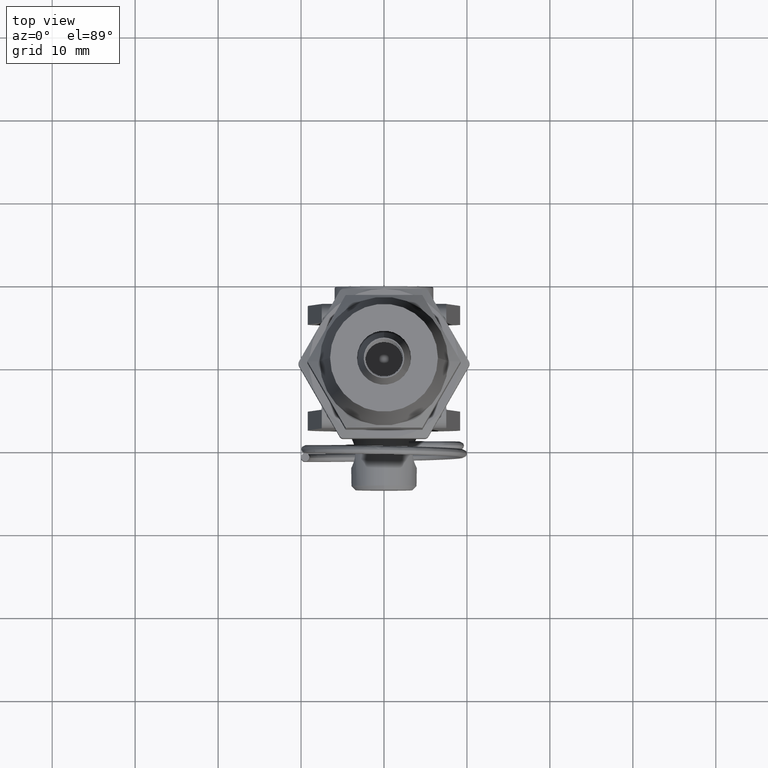
[diagram: clean part render]
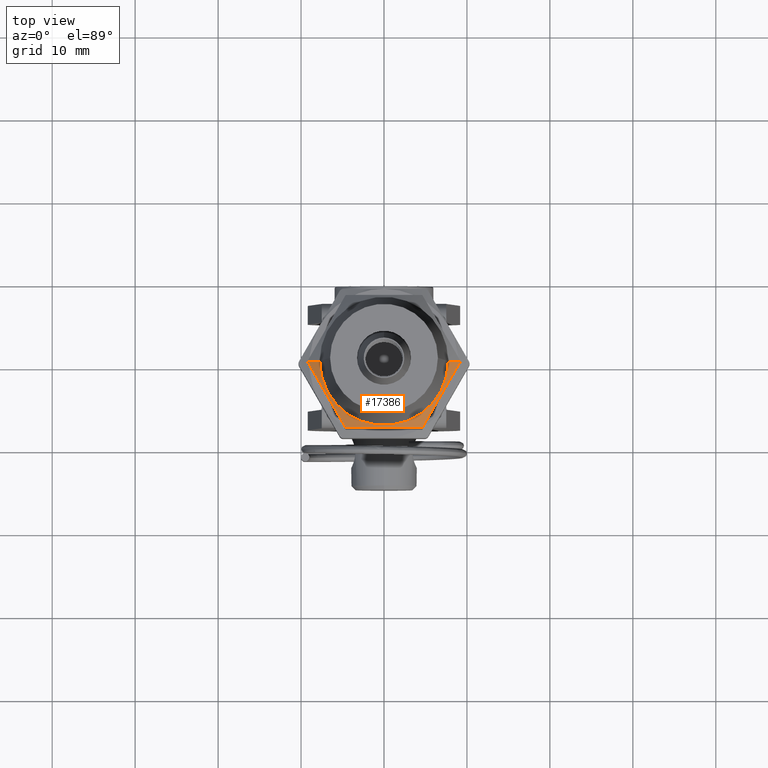
[diagram: same view with one face highlighted and labeled with its STEP entity id]
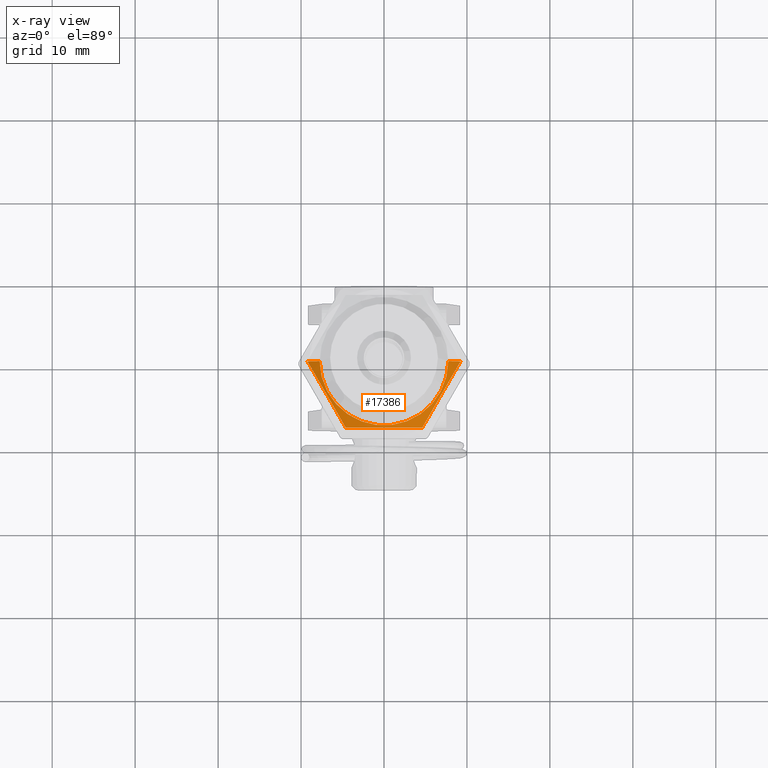
[diagram: x-ray of the same camera — body ghosted, the highlighted face saturated]
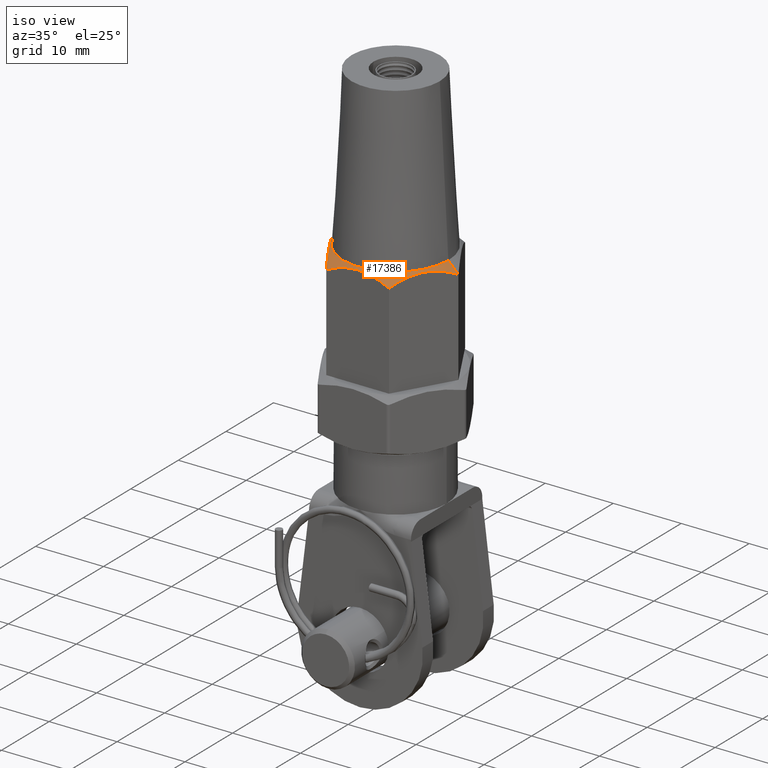
[diagram: same view with one face highlighted and labeled with its STEP entity id]
A machine part, top view. The second image highlights one B-rep face of the part: STEP entity #17386.
The next image is the same camera in x-ray: the body ghosted, the highlighted face saturated — about 0% of this face is hidden behind the body in this view.
A second angle (iso view) of the same face is appended — the face is thin or edge-on in the first view.
In plain terms, the highlighted conical surface has half-angle 45 deg.
Its self-contained STEP definition (entity closure, byte-faithful):
#480 = VERTEX_POINT ( 'NONE', #23951 ) ;
#825 = CARTESIAN_POINT ( 'NONE',  ( 7.138309739936278000, 3.636084850266585900, 15.24912493455081000 ) ) ;
#847 = VECTOR ( 'NONE', #10684, 999.9999999999998900 ) ;
#1408 = EDGE_CURVE ( 'NONE', #4898, #11591, #21672, .T. ) ;
#1543 = FACE_OUTER_BOUND ( 'NONE', #12428, .T. ) ;
#2098 = VERTEX_POINT ( 'NONE', #2561 ) ;
#2561 = CARTESIAN_POINT ( 'NONE',  ( 7.750000000000000000, 9.491012693391987800E-016, 15.49999999999999800 ) ) ;
#2592 = CARTESIAN_POINT ( 'NONE',  ( 7.342827493142404000, 3.281849710663745400, 15.21672055673864500 ) ) ;
#2645 = CARTESIAN_POINT ( 'NONE',  ( -8.874600561760217900, 0.6287409301519972800, 14.37539943823989000 ) ) ;
#2726 = CARTESIAN_POINT ( 'NONE',  ( -6.718096720614738600, 4.363915149733414500, 15.24912493455081000 ) ) ;
#2829 = CARTESIAN_POINT ( 'NONE',  ( 3.150006993079935000, 8.000000000000000000, 14.65897714454855600 ) ) ;
#2926 = EDGE_CURVE ( 'NONE', #11591, #17812, #22104, .T. ) ;
#2982 = CARTESIAN_POINT ( 'NONE',  ( -0.1992170192775376800, 8.000000000000000000, 15.25008463695903800 ) ) ;
#3143 = CARTESIAN_POINT ( 'NONE',  ( 10.75000000000000000, 1.316495309083404600E-015, 12.50000000000003000 ) ) ;
#3521 = AXIS2_PLACEMENT_3D ( 'NONE', #11679, #22890, #9817 ) ;
#4137 = CARTESIAN_POINT ( 'NONE',  ( 8.876725567743847000, 0.6250603118219687500, 14.37327443225615700 ) ) ;
#4684 = CARTESIAN_POINT ( 'NONE',  ( 4.261393135430398400, 8.000000000000000000, 14.19110020200930800 ) ) ;
#4763 = CARTESIAN_POINT ( 'NONE',  ( -3.901907008223546300, 8.000000000000001800, 14.37084326561273300 ) ) ;
#4814 = CARTESIAN_POINT ( 'NONE',  ( -10.75000000000000000, 0.0000000000000000000, 12.50000000000003000 ) ) ;
#4898 = VERTEX_POINT ( 'NONE', #16124 ) ;
#4925 = ORIENTED_EDGE ( 'NONE', *, *, #11656, .T. ) ;
#4952 = ORIENTED_EDGE ( 'NONE', *, *, #2926, .T. ) ;
#5004 = B_SPLINE_CURVE_WITH_KNOTS ( 'NONE', 3,
 ( #5841, #4137, #17279, #6255, #19050, #2592, #825, #15555, #13756, #15393, #13433, #19219 ),
 .UNSPECIFIED., .F., .F.,
 ( 4, 2, 2, 2, 2, 4 ),
 ( 2.544314529397432000E-007, 0.002385773626046112800, 0.003578533223342701200, 0.004771292820639290800, 0.007156812015232467400, 0.009542331209825644100 ),
 .UNSPECIFIED. ) ;
#5841 = CARTESIAN_POINT ( 'NONE',  ( 9.237604307034013500, 2.495771088322280300E-015, 14.01239569296600100 ) ) ;
#6147 = CARTESIAN_POINT ( 'NONE',  ( -5.922026815484576500, 5.742748671795387900, 15.00891477168109500 ) ) ;
#6255 = CARTESIAN_POINT ( 'NONE',  ( 7.934379645066439200, 2.257251328204608500, 15.00891477168109700 ) ) ;
#6632 = CARTESIAN_POINT ( 'NONE',  ( -4.618802153517006700, 7.999999999999998200, 14.01239569296600300 ) ) ;
#6662 = VERTEX_POINT ( 'NONE', #23503 ) ;
#6747 = ORIENTED_EDGE ( 'NONE', *, *, #8767, .T. ) ;
#7096 = VECTOR ( 'NONE', #8696, 999.9999999999998900 ) ;
#7414 = LINE ( 'NONE', #4814, #7096 ) ;
#7992 = CARTESIAN_POINT ( 'NONE',  ( -7.719235749631799600, 2.629891486035690600, 15.12958881768752100 ) ) ;
#8316 = CARTESIAN_POINT ( 'NONE',  ( -1.992580600150519100, 8.000000000000001800, 15.01384934340876300 ) ) ;
#8398 = CARTESIAN_POINT ( 'NONE',  ( -0.8070621912752542500, 7.999999999999998200, 15.21191026365274000 ) ) ;
#8635 = CARTESIAN_POINT ( 'NONE',  ( -1.407051687259963000, 7.999999999999998200, 15.14393158571326300 ) ) ;
#8696 = DIRECTION ( 'NONE',  ( -0.7071067811865511300, 0.0000000000000000000, -0.7071067811865440200 ) ) ;
#8767 = EDGE_CURVE ( 'NONE', #2098, #480, #18242, .T. ) ;
#9465 = CIRCLE ( 'NONE', #18059, 7.750000000000000000 ) ;
#9817 = DIRECTION ( 'NONE',  ( -1.000000000000000000, 0.0000000000000000000, 0.0000000000000000000 ) ) ;
#9923 = ORIENTED_EDGE ( 'NONE', *, *, #12451, .T. ) ;
#10684 = DIRECTION ( 'NONE',  ( 0.7071067811865511300, 8.659560562354978500E-017, -0.7071067811865440200 ) ) ;
#11591 = VERTEX_POINT ( 'NONE', #14440 ) ;
#11617 = DIRECTION ( 'NONE',  ( -1.000000000000000000, 0.0000000000000000000, 0.0000000000000000000 ) ) ;
#11656 = EDGE_CURVE ( 'NONE', #6662, #2098, #9465, .T. ) ;
#11679 = CARTESIAN_POINT ( 'NONE',  ( 1.710283705059582400E-016, 0.0000000000000000000, 12.50000000000003000 ) ) ;
#11731 = CARTESIAN_POINT ( 'NONE',  ( -9.237604307034011700, 1.842117502873090300E-015, 14.01239569296600300 ) ) ;
#12027 = CARTESIAN_POINT ( 'NONE',  ( -8.500836152652887300, 1.276119876786852900, 14.68665689013398900 ) ) ;
#12057 = CARTESIAN_POINT ( 'NONE',  ( 3.897114081797245200, 8.000000000000000000, 14.35783334541131900 ) ) ;
#12428 = EDGE_LOOP ( 'NONE', ( #4925, #6747, #9923, #18301, #4952, #19548 ) ) ;
#12451 = EDGE_CURVE ( 'NONE', #480, #4898, #5004, .T. ) ;
#12854 = EDGE_CURVE ( 'NONE', #6662, #17812, #7414, .T. ) ;
#13433 = CARTESIAN_POINT ( 'NONE',  ( 4.981805898790793400, 7.371259069848008500, 14.37539943823990100 ) ) ;
#13756 = CARTESIAN_POINT ( 'NONE',  ( 6.137170710919217100, 5.370108513964309400, 15.12958881768753000 ) ) ;
#14440 = CARTESIAN_POINT ( 'NONE',  ( -4.618802153517006700, 7.999999999999998200, 14.01239569296600300 ) ) ;
#15393 = CARTESIAN_POINT ( 'NONE',  ( 5.355570307898124900, 6.723880123213148400, 14.68665689013399800 ) ) ;
#15555 = CARTESIAN_POINT ( 'NONE',  ( 6.533495485785080900, 4.683653867598335900, 15.25169592103925500 ) ) ;
#15747 = CONICAL_SURFACE ( 'NONE', #3521, 10.75000000000000000, 0.7853981633974533900 ) ;
#15765 = CARTESIAN_POINT ( 'NONE',  ( -4.618802153517006700, 7.999999999999998200, 14.01239569296600300 ) ) ;
#15941 = CARTESIAN_POINT ( 'NONE',  ( 0.8137194574464193800, 8.000000000000000000, 15.24965790255126700 ) ) ;
#16124 = CARTESIAN_POINT ( 'NONE',  ( 4.618802153517002300, 8.000000000000000000, 14.01239569296600400 ) ) ;
#17279 = CARTESIAN_POINT ( 'NONE',  ( 8.507706789960852900, 1.264219583889083700, 14.68011007661160500 ) ) ;
#17331 = CARTESIAN_POINT ( 'NONE',  ( -7.322910974765934900, 3.316346132401665000, 15.25169592103926100 ) ) ;
#17386 = ADVANCED_FACE ( 'NONE', ( #1543 ), #15747, .T. ) ;
#17812 = VERTEX_POINT ( 'NONE', #18955 ) ;
#18059 = AXIS2_PLACEMENT_3D ( 'NONE', #22750, #20956, #11617 ) ;
#18242 = LINE ( 'NONE', #3143, #847 ) ;
#18301 = ORIENTED_EDGE ( 'NONE', *, *, #1408, .T. ) ;
#18955 = CARTESIAN_POINT ( 'NONE',  ( -9.237604307034011700, 1.842117502873090300E-015, 14.01239569296600300 ) ) ;
#19050 = CARTESIAN_POINT ( 'NONE',  ( 7.739935964406828200, 2.594037662317756800, 15.09637714738196500 ) ) ;
#19108 = CARTESIAN_POINT ( 'NONE',  ( -4.979680892807168700, 7.374939688178030500, 14.37327443225616000 ) ) ;
#19219 = CARTESIAN_POINT ( 'NONE',  ( 4.618802153517002300, 8.000000000000000000, 14.01239569296600400 ) ) ;
#19428 = CARTESIAN_POINT ( 'NONE',  ( -5.348699670590167300, 6.735780416110916500, 14.68011007661160500 ) ) ;
#19454 = CARTESIAN_POINT ( 'NONE',  ( 4.618802153517002300, 8.000000000000000000, 14.01239569296600400 ) ) ;
#19530 = CARTESIAN_POINT ( 'NONE',  ( 2.765096951514606400, 8.000000000000000000, 14.79375686713653000 ) ) ;
#19548 = ORIENTED_EDGE ( 'NONE', *, *, #12854, .F. ) ;
#19755 = CARTESIAN_POINT ( 'NONE',  ( 1.603663895284762200, 8.000000000000001800, 15.12467631584186000 ) ) ;
#20956 = DIRECTION ( 'NONE',  ( -1.368226964047662500E-017, -0.0000000000000000000, -1.000000000000000000 ) ) ;
#20979 = CARTESIAN_POINT ( 'NONE',  ( -6.513578967408614400, 4.718150289336255000, 15.21672055673863800 ) ) ;
#21470 = CARTESIAN_POINT ( 'NONE',  ( -0.4036049393148767900, 7.999999999999998200, 15.24235152020117000 ) ) ;
#21549 = CARTESIAN_POINT ( 'NONE',  ( -3.147599742753600900, 7.999999999999998200, 14.68480386094566700 ) ) ;
#21672 = B_SPLINE_CURVE_WITH_KNOTS ( 'NONE', 3,
 ( #19454, #4684, #12057, #2829, #19530, #19755, #15941, #2982, #21470, #8398, #8635, #8316, #21549, #4763, #6632 ),
 .UNSPECIFIED., .F., .F.,
 ( 4, 2, 2, 2, 2, 1, 2, 4 ),
 ( 0.004841677880556899100, 0.006038494063997982400, 0.007235310247439065800, 0.009628942614321230700, 0.01022735070604177300, 0.01082575879776231600, 0.01202257498120339700, 0.01441620734808556600 ),
 .UNSPECIFIED. ) ;
#22104 = B_SPLINE_CURVE_WITH_KNOTS ( 'NONE', 3,
 ( #15765, #19108, #19428, #6147, #22929, #20979, #2726, #17331, #7992, #12027, #2645, #11731 ),
 .UNSPECIFIED., .F., .F.,
 ( 4, 2, 2, 2, 2, 4 ),
 ( 2.544314529400944000E-007, 0.002385773626046116300, 0.003578533223342705500, 0.004771292820639294300, 0.007156812015232470000, 0.009542331209825644100 ),
 .UNSPECIFIED. ) ;
#22750 = CARTESIAN_POINT ( 'NONE',  ( 2.120751794273876500E-016, 0.0000000000000000000, 15.49999999999999800 ) ) ;
#22890 = DIRECTION ( 'NONE',  ( -1.368226964047662500E-017, -0.0000000000000000000, -1.000000000000000000 ) ) ;
#22929 = CARTESIAN_POINT ( 'NONE',  ( -6.116470496144189400, 5.405962337682241000, 15.09637714738195900 ) ) ;
#23503 = CARTESIAN_POINT ( 'NONE',  ( -7.750000000000000000, 0.0000000000000000000, 15.49999999999999800 ) ) ;
#23951 = CARTESIAN_POINT ( 'NONE',  ( 9.237604307034013500, 2.495771088322280300E-015, 14.01239569296600100 ) ) ;